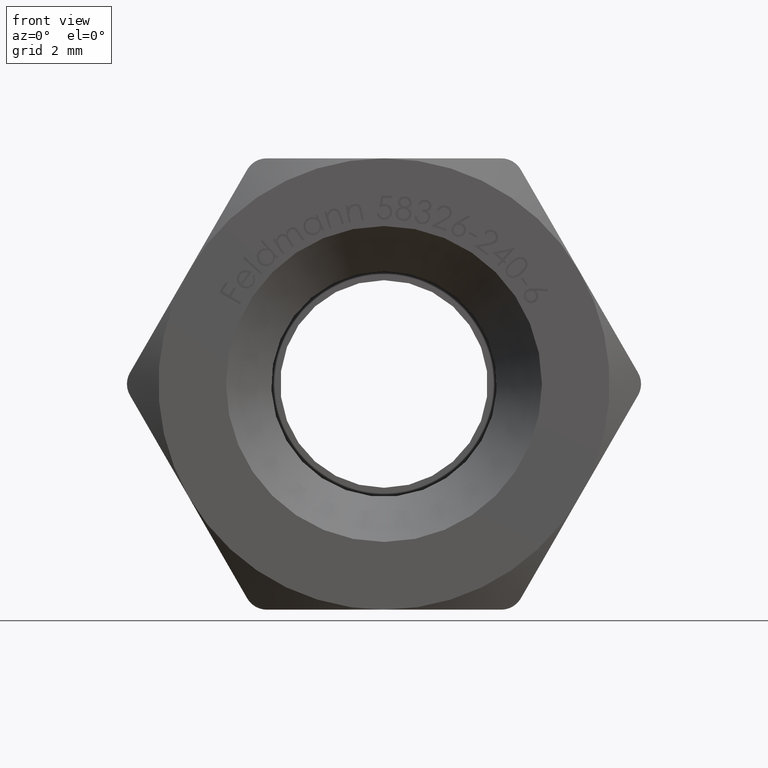
[diagram: clean part render]
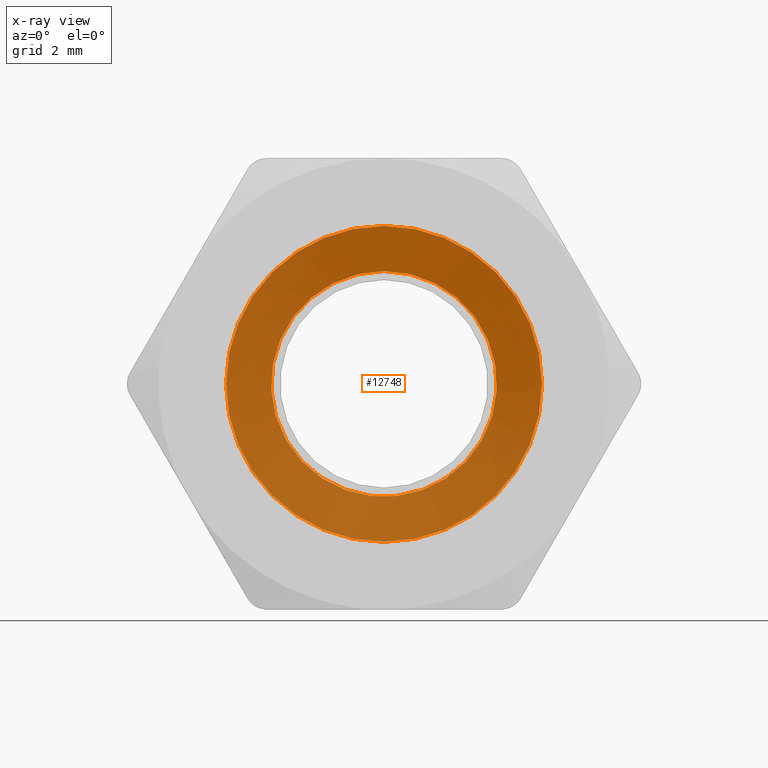
[diagram: x-ray — body ghosted, one internal face saturated and labeled with its STEP entity id]
A machine part, front view, then the same camera in x-ray: the body is ghosted and one INTERNAL B-rep face — a face not visible from any outside direction — is saturated and labeled: STEP entity #12748.
In plain terms, the highlighted planar face has unit normal (0, 1, 0).
Its self-contained STEP definition (entity closure, byte-faithful):
#355 = DIRECTION ( 'NONE',  ( 0.000000000000000000, 1.000000000000000000, 0.000000000000000000 ) ) ;
#1131 = DIRECTION ( 'NONE',  ( 0.000000000000000000, 1.000000000000000000, 0.000000000000000000 ) ) ;
#1243 = AXIS2_PLACEMENT_3D ( 'NONE', #7688, #355, #1381 ) ;
#1381 = DIRECTION ( 'NONE',  ( 0.000000000000000000, 0.000000000000000000, 1.000000000000000000 ) ) ;
#2368 = DIRECTION ( 'NONE',  ( 0.000000000000000000, -0.000000000000000000, 1.000000000000000000 ) ) ;
#2576 = CARTESIAN_POINT ( 'NONE',  ( 0.000000000000000000, 2.750000000000000444, 2.499999999999999556 ) ) ;
#4454 = ORIENTED_EDGE ( 'NONE', *, *, #9164, .T. ) ;
#5242 = EDGE_LOOP ( 'NONE', ( #4454 ) ) ;
#5687 = CIRCLE ( 'NONE', #5774, 2.499999999999999556 ) ;
#5774 = AXIS2_PLACEMENT_3D ( 'NONE', #7665, #6482, #6330 ) ;
#6330 = DIRECTION ( 'NONE',  ( 0.000000000000000000, 0.000000000000000000, 1.000000000000000000 ) ) ;
#6482 = DIRECTION ( 'NONE',  ( 0.000000000000000000, 1.000000000000000000, 0.000000000000000000 ) ) ;
#6831 = ORIENTED_EDGE ( 'NONE', *, *, #13463, .F. ) ;
#7127 = VERTEX_POINT ( 'NONE', #2576 ) ;
#7665 = CARTESIAN_POINT ( 'NONE',  ( 0.000000000000000000, 2.750000000000000444, 0.000000000000000000 ) ) ;
#7688 = CARTESIAN_POINT ( 'NONE',  ( 0.000000000000000000, 2.750000000000000444, 0.000000000000000000 ) ) ;
#8460 = CARTESIAN_POINT ( 'NONE',  ( 0.000000000000000000, 2.750000000000000444, 0.000000000000000000 ) ) ;
#8563 = FACE_OUTER_BOUND ( 'NONE', #5242, .T. ) ;
#9164 = EDGE_CURVE ( 'NONE', #9791, #9791, #12792, .T. ) ;
#9791 = VERTEX_POINT ( 'NONE', #9890 ) ;
#9827 = PLANE ( 'NONE',  #12015 ) ;
#9890 = CARTESIAN_POINT ( 'NONE',  ( 0.000000000000000000, 2.750000000000000444, 3.499999999999999556 ) ) ;
#12015 = AXIS2_PLACEMENT_3D ( 'NONE', #8460, #1131, #2368 ) ;
#12748 = ADVANCED_FACE ( 'NONE', ( #15824, #8563 ), #9827, .T. ) ;
#12792 = CIRCLE ( 'NONE', #1243, 3.499999999999999556 ) ;
#13463 = EDGE_CURVE ( 'NONE', #7127, #7127, #5687, .T. ) ;
#13888 = EDGE_LOOP ( 'NONE', ( #6831 ) ) ;
#15824 = FACE_BOUND ( 'NONE', #13888, .T. ) ;